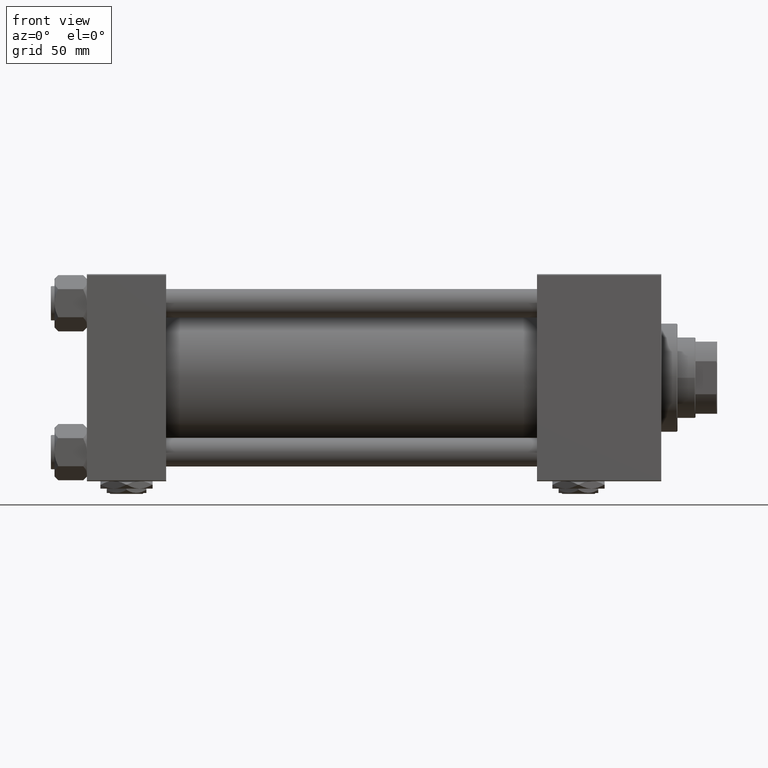
[diagram: clean part render]
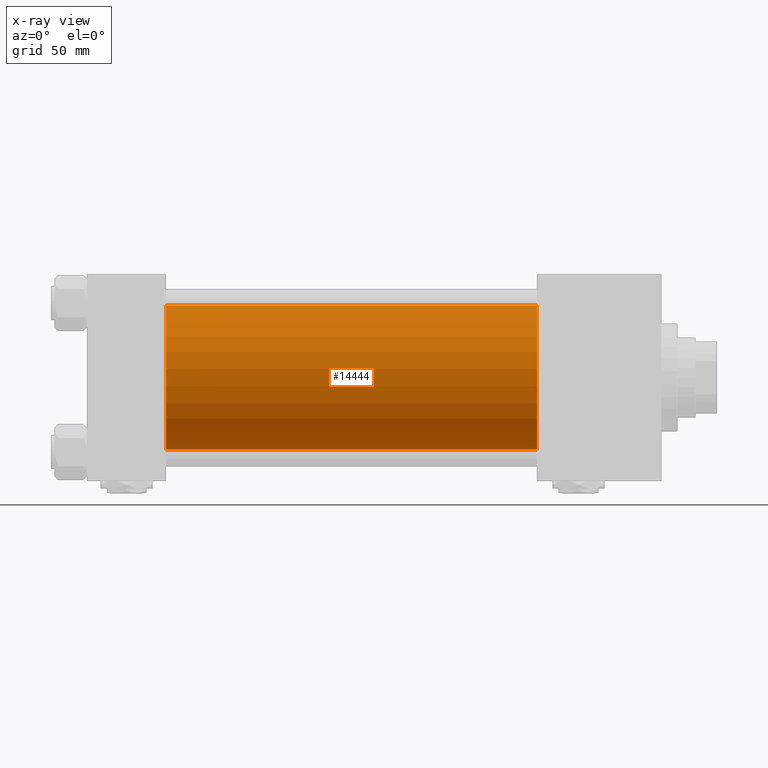
[diagram: x-ray — body ghosted, one internal face saturated and labeled with its STEP entity id]
A machine part, front view, then the same camera in x-ray: the body is ghosted and one INTERNAL B-rep face — a face not visible from any outside direction — is saturated and labeled: STEP entity #14444.
In plain terms, the highlighted cylindrical surface (partial cylindrical patch) has radius 40 mm, axis along (-1, -0, -0).
Its self-contained STEP definition (entity closure, byte-faithful):
#2709 = ORIENTED_EDGE ( 'NONE', *, *, #13848, .T. ) ;
#5252 = VERTEX_POINT ( 'NONE', #19589 ) ;
#7335 = CIRCLE ( 'NONE', #39781, 40.00000000000000000 ) ;
#10053 = CARTESIAN_POINT ( 'NONE',  ( 250.0000000000000000, 2.296501982624201990E-15, -40.00000000000000000 ) ) ;
#10224 = FACE_OUTER_BOUND ( 'NONE', #17941, .T. ) ;
#13211 = VERTEX_POINT ( 'NONE', #21508 ) ;
#13848 = EDGE_CURVE ( 'NONE', #13211, #5252, #7335, .T. ) ;
#14444 = ADVANCED_FACE ( 'NONE', ( #10224 ), #37775, .F. ) ;
#15429 = CARTESIAN_POINT ( 'NONE',  ( 44.00000000000000000, -2.602085213965210642E-15, 0.000000000000000000 ) ) ;
#15890 = EDGE_CURVE ( 'NONE', #13211, #27088, #35256, .T. ) ;
#17441 = DIRECTION ( 'NONE',  ( 0.000000000000000000, 0.000000000000000000, 1.000000000000000000 ) ) ;
#17941 = EDGE_LOOP ( 'NONE', ( #2709, #44993, #25913, #33472 ) ) ;
#18241 = CARTESIAN_POINT ( 'NONE',  ( 250.0000000000000000, -2.602085213965210642E-15, 0.000000000000000000 ) ) ;
#18295 = EDGE_CURVE ( 'NONE', #5252, #47810, #37868, .T. ) ;
#19190 = DIRECTION ( 'NONE',  ( -1.000000000000000000, -0.000000000000000000, -0.000000000000000000 ) ) ;
#19589 = CARTESIAN_POINT ( 'NONE',  ( 250.0000000000000000, 2.296501982624201990E-15, -40.00000000000000000 ) ) ;
#19665 = CARTESIAN_POINT ( 'NONE',  ( 250.0000000000000000, -2.602085213965210642E-15, 0.000000000000000000 ) ) ;
#21508 = CARTESIAN_POINT ( 'NONE',  ( 250.0000000000000000, -2.602085213965210642E-15, 40.00000000000000000 ) ) ;
#22695 = DIRECTION ( 'NONE',  ( 1.000000000000000000, 0.000000000000000000, 0.000000000000000000 ) ) ;
#24445 = VECTOR ( 'NONE', #49898, 1000.000000000000000 ) ;
#24740 = AXIS2_PLACEMENT_3D ( 'NONE', #15429, #28507, #28244 ) ;
#25913 = ORIENTED_EDGE ( 'NONE', *, *, #30487, .F. ) ;
#25986 = DIRECTION ( 'NONE',  ( -1.000000000000000000, -0.000000000000000000, -0.000000000000000000 ) ) ;
#27088 = VERTEX_POINT ( 'NONE', #28308 ) ;
#28244 = DIRECTION ( 'NONE',  ( 0.000000000000000000, 0.000000000000000000, -1.000000000000000000 ) ) ;
#28308 = CARTESIAN_POINT ( 'NONE',  ( 44.00000000000000000, -2.602085213965210642E-15, 40.00000000000000000 ) ) ;
#28507 = DIRECTION ( 'NONE',  ( 1.000000000000000000, 0.000000000000000000, 0.000000000000000000 ) ) ;
#30487 = EDGE_CURVE ( 'NONE', #27088, #47810, #40136, .T. ) ;
#32243 = DIRECTION ( 'NONE',  ( 0.000000000000000000, 0.000000000000000000, -1.000000000000000000 ) ) ;
#33472 = ORIENTED_EDGE ( 'NONE', *, *, #15890, .F. ) ;
#33624 = CARTESIAN_POINT ( 'NONE',  ( 44.00000000000000000, 2.296501982624201990E-15, -40.00000000000000000 ) ) ;
#35256 = LINE ( 'NONE', #51563, #38068 ) ;
#37775 = CYLINDRICAL_SURFACE ( 'NONE', #38963, 40.00000000000000000 ) ;
#37868 = LINE ( 'NONE', #10053, #24445 ) ;
#38068 = VECTOR ( 'NONE', #19190, 1000.000000000000000 ) ;
#38963 = AXIS2_PLACEMENT_3D ( 'NONE', #18241, #25986, #17441 ) ;
#39781 = AXIS2_PLACEMENT_3D ( 'NONE', #19665, #22695, #32243 ) ;
#40136 = CIRCLE ( 'NONE', #24740, 40.00000000000000000 ) ;
#44993 = ORIENTED_EDGE ( 'NONE', *, *, #18295, .T. ) ;
#47810 = VERTEX_POINT ( 'NONE', #33624 ) ;
#49898 = DIRECTION ( 'NONE',  ( -1.000000000000000000, -0.000000000000000000, -0.000000000000000000 ) ) ;
#51563 = CARTESIAN_POINT ( 'NONE',  ( 250.0000000000000000, -2.602085213965210642E-15, 40.00000000000000000 ) ) ;